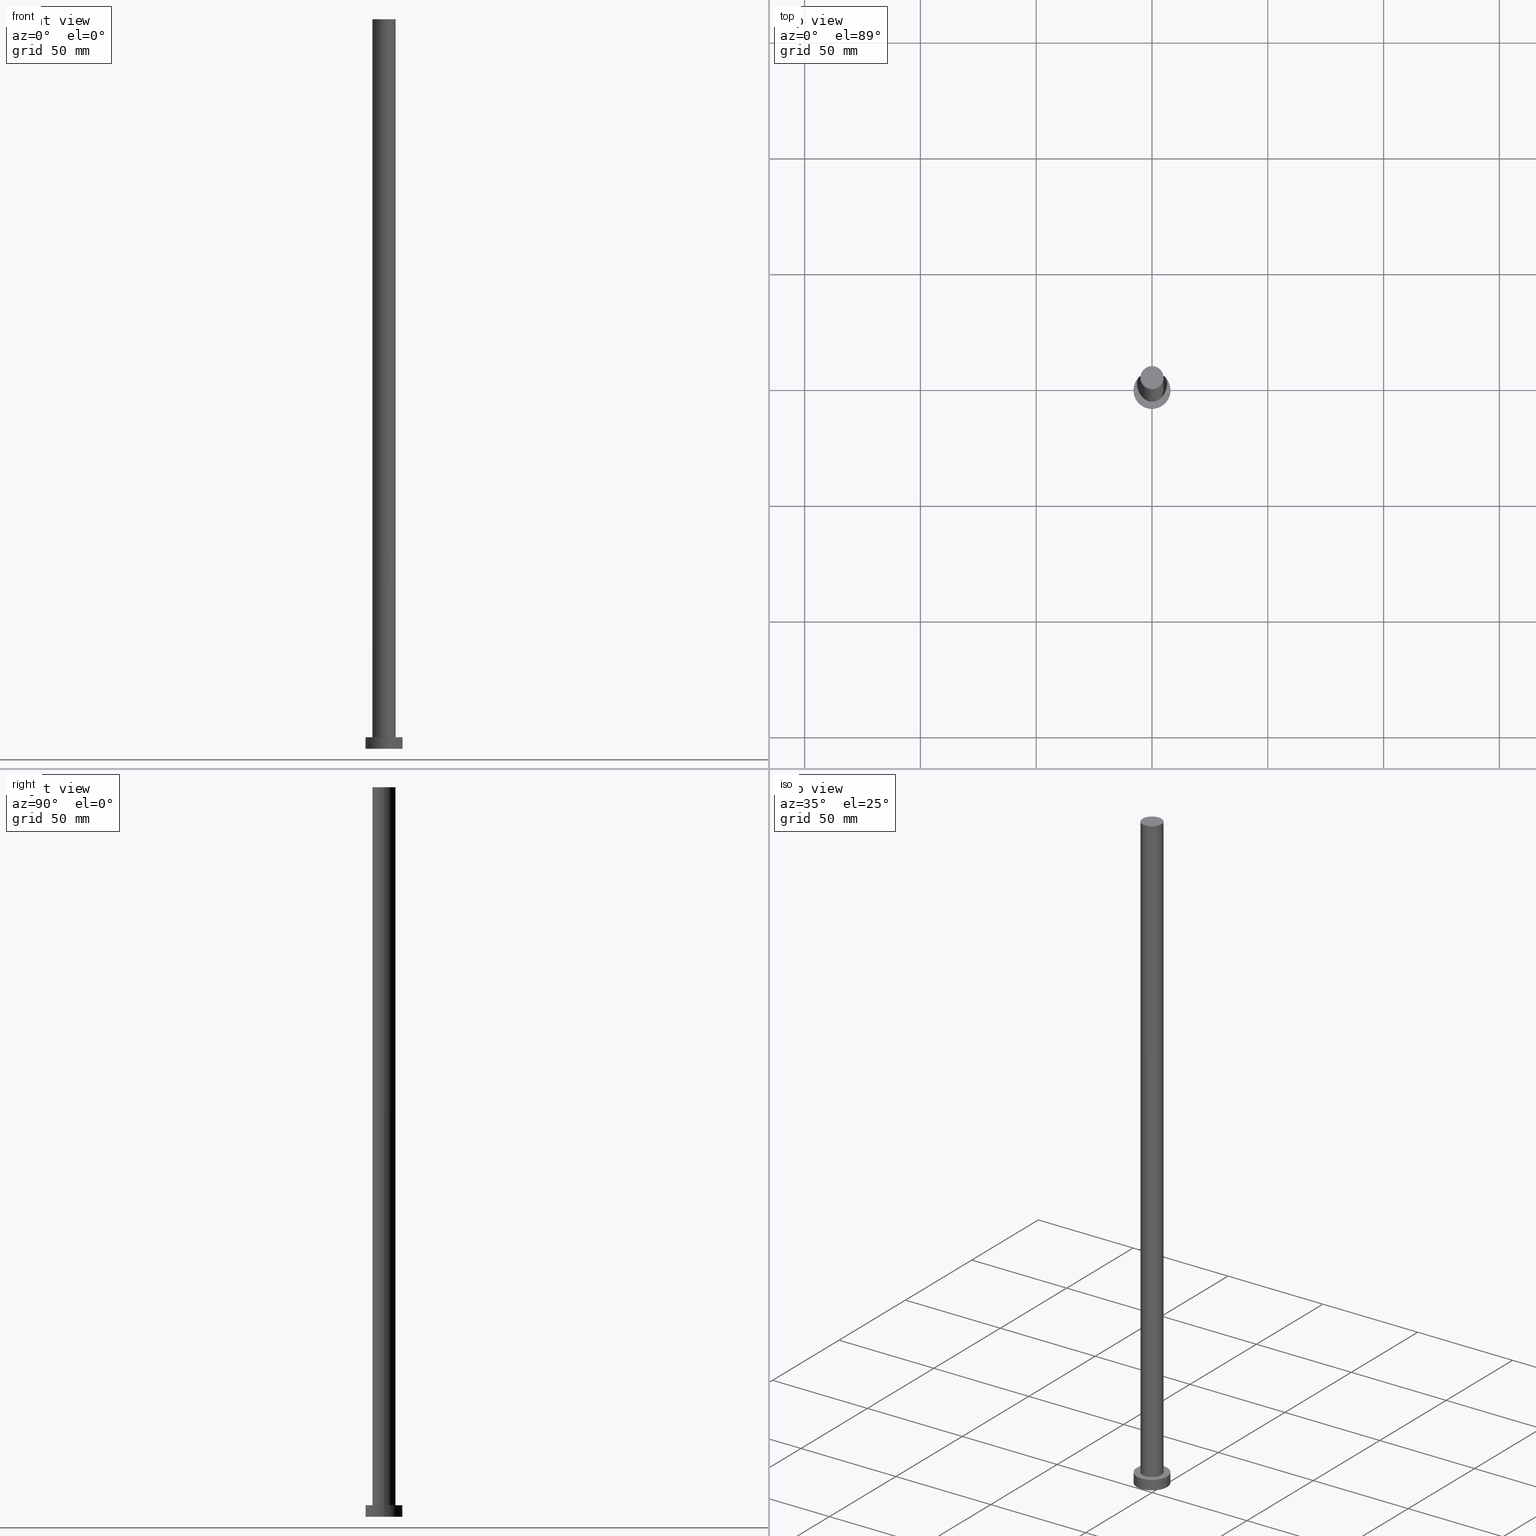
[diagram: canonical four-view strip — front | top / right | iso, engineering-drawing reading convention]
A machine part, canonical four-view strip (front | top / right | iso — engineering-drawing reading convention). The complete STEP part file that produces these views, byte-faithful:
ISO-10303-21;
HEADER;
FILE_DESCRIPTION (( 'STEP AP203' ),
    '1' );
FILE_NAME ('c15c.STEP',
    '2023-02-13T13:49:29',
    ( '' ),
    ( '' ),
    'SwSTEP 2.0',
    'SolidWorks 2019',
    '' );
FILE_SCHEMA (( 'CONFIG_CONTROL_DESIGN' ));
ENDSEC;

DATA;
#1 = APPROVAL_ROLE ( '' ) ;
#2 = EDGE_LOOP ( 'NONE', ( #175, #210 ) ) ;
#3 = CARTESIAN_POINT ( 'NONE',  ( 8.000000000000000000, 9.797174393178825657E-16, 5.000000000000000000 ) ) ;
#4 = VECTOR ( 'NONE', #229, 1000.000000000000000 ) ;
#5 = CC_DESIGN_DATE_AND_TIME_ASSIGNMENT ( #83, #182, ( #224 ) ) ;
#6 = ORIENTED_EDGE ( 'NONE', *, *, #124, .F. ) ;
#7 = AXIS2_PLACEMENT_3D ( 'NONE', #242, #132, #11 ) ;
#8 = CC_DESIGN_PERSON_AND_ORGANIZATION_ASSIGNMENT ( #30, #248, ( #152 ) ) ;
#9 = ADVANCED_FACE ( 'NONE', ( #55 ), #76, .F. ) ;
#10 = AXIS2_PLACEMENT_3D ( 'NONE', #250, #139, #84 ) ;
#11 = DIRECTION ( 'NONE',  ( 1.000000000000000000, 0.000000000000000000, 0.000000000000000000 ) ) ;
#12 = ORIENTED_EDGE ( 'NONE', *, *, #136, .F. ) ;
#13 = APPROVAL ( #164, 'NEUR�EN�' ) ;
#14 = EDGE_CURVE ( 'NONE', #217, #87, #95, .T. ) ;
#15 = CARTESIAN_POINT ( 'NONE',  ( 0.000000000000000000, 0.000000000000000000, 5.000000000000000000 ) ) ;
#16 = DIRECTION ( 'NONE',  ( 1.000000000000000000, 0.000000000000000000, -0.000000000000000000 ) ) ;
#17 = DATE_TIME_ROLE ( 'creation_date' ) ;
#18 = DIRECTION ( 'NONE',  ( 0.000000000000000000, 0.000000000000000000, 1.000000000000000000 ) ) ;
#19 = LINE ( 'NONE', #3, #171 ) ;
#20 = ORIENTED_EDGE ( 'NONE', *, *, #109, .T. ) ;
#21 = LOCAL_TIME ( 14, 49, 29.00000000000000000, #188 ) ;
#22 = CIRCLE ( 'NONE', #89, 8.000000000000000000 ) ;
#23 = APPROVAL_PERSON_ORGANIZATION ( #24, #130, #160 ) ;
#24 = PERSON_AND_ORGANIZATION ( #54, #245 ) ;
#25 = VERTEX_POINT ( 'NONE', #31 ) ;
#26 = CARTESIAN_POINT ( 'NONE',  ( 0.000000000000000000, 0.000000000000000000, 5.000000000000000000 ) ) ;
#27 = APPROVAL_DATE_TIME ( #252, #85 ) ;
#28 = EDGE_CURVE ( 'NONE', #187, #115, #42, .T. ) ;
#29 = UNCERTAINTY_MEASURE_WITH_UNIT (LENGTH_MEASURE( 1.000000000000000082E-05 ), #40, 'distance_accuracy_value', 'NONE');
#30 = PERSON_AND_ORGANIZATION ( #54, #245 ) ;
#31 = CARTESIAN_POINT ( 'NONE',  ( 8.000000000000000000, 9.797174393178825657E-16, 5.000000000000000000 ) ) ;
#32 = CC_DESIGN_PERSON_AND_ORGANIZATION_ASSIGNMENT ( #243, #199, ( #52 ) ) ;
#33 = LINE ( 'NONE', #225, #120 ) ;
#34 = ORIENTED_EDGE ( 'NONE', *, *, #136, .T. ) ;
#35 = DIRECTION ( 'NONE',  ( 0.000000000000000000, 0.000000000000000000, 1.000000000000000000 ) ) ;
#36 = DIRECTION ( 'NONE',  ( 0.000000000000000000, 0.000000000000000000, 1.000000000000000000 ) ) ;
#37 = CIRCLE ( 'NONE', #41, 5.000000000000000000 ) ;
#38 = VECTOR ( 'NONE', #186, 1000.000000000000000 ) ;
#39 = CARTESIAN_POINT ( 'NONE',  ( 0.000000000000000000, 0.000000000000000000, 5.000000000000000000 ) ) ;
#40 =( LENGTH_UNIT ( ) NAMED_UNIT ( * ) SI_UNIT ( .MILLI., .METRE. ) );
#41 = AXIS2_PLACEMENT_3D ( 'NONE', #79, #35, #228 ) ;
#42 = LINE ( 'NONE', #61, #4 ) ;
#43 = CARTESIAN_POINT ( 'NONE',  ( 5.000000000000000000, 6.123233995736766282E-16, 5.000000000000000000 ) ) ;
#44 = PERSON_AND_ORGANIZATION ( #54, #245 ) ;
#45 = ORIENTED_EDGE ( 'NONE', *, *, #28, .T. ) ;
#46 = ORIENTED_EDGE ( 'NONE', *, *, #109, .F. ) ;
#47 = CARTESIAN_POINT ( 'NONE',  ( -5.000000000000000000, 0.000000000000000000, 315.0000000000000000 ) ) ;
#48 = APPROVAL_PERSON_ORGANIZATION ( #86, #13, #255 ) ;
#49 = ORIENTED_EDGE ( 'NONE', *, *, #53, .F. ) ;
#50 = CC_DESIGN_DATE_AND_TIME_ASSIGNMENT ( #213, #17, ( #161 ) ) ;
#51 = EDGE_LOOP ( 'NONE', ( #198, #6, #34, #88 ) ) ;
#52 = PRODUCT ( 'c15c', 'c15c', '', ( #71 ) ) ;
#53 = EDGE_CURVE ( 'NONE', #187, #125, #194, .T. ) ;
#54 = PERSON ( 'NEUR�EN�', 'NEUR�EN�', 'NEUR�EN�', ('NEUR�EN�'), ('NEUR�EN�'), ('NEUR�EN�') ) ;
#55 = FACE_OUTER_BOUND ( 'NONE', #146, .T. ) ;
#56 = PRODUCT_DEFINITION_SHAPE ( 'NONE', 'NONE',  #161 ) ;
#57 = CARTESIAN_POINT ( 'NONE',  ( 0.000000000000000000, 0.000000000000000000, 5.000000000000000000 ) ) ;
#58 = PERSON_AND_ORGANIZATION_ROLE ( 'creator' ) ;
#59 = ORIENTED_EDGE ( 'NONE', *, *, #216, .F. ) ;
#60 = CIRCLE ( 'NONE', #237, 8.000000000000000000 ) ;
#61 = CARTESIAN_POINT ( 'NONE',  ( 5.000000000000000000, 6.123233995736766282E-16, 315.0000000000000000 ) ) ;
#62 = CARTESIAN_POINT ( 'NONE',  ( 0.000000000000000000, 0.000000000000000000, 315.0000000000000000 ) ) ;
#63 = SECURITY_CLASSIFICATION_LEVEL ( 'unclassified' ) ;
#64 = FACE_OUTER_BOUND ( 'NONE', #106, .T. ) ;
#65 = MANIFOLD_SOLID_BREP ( 'P�idat vysunut�m3', #153 ) ;
#66 = EDGE_LOOP ( 'NONE', ( #59, #46, #234, #147 ) ) ;
#67 = DIRECTION ( 'NONE',  ( -0.000000000000000000, -0.000000000000000000, -1.000000000000000000 ) ) ;
#68 = AXIS2_PLACEMENT_3D ( 'NONE', #183, #249, #16 ) ;
#69 =( NAMED_UNIT ( * ) PLANE_ANGLE_UNIT ( ) SI_UNIT ( $, .RADIAN. ) );
#70 = ORIENTED_EDGE ( 'NONE', *, *, #216, .T. ) ;
#71 = MECHANICAL_CONTEXT ( 'NONE', #209, 'mechanical' ) ;
#72 = LOCAL_TIME ( 14, 49, 29.00000000000000000, #178 ) ;
#73 = AXIS2_PLACEMENT_3D ( 'NONE', #103, #134, #141 ) ;
#74 = FACE_OUTER_BOUND ( 'NONE', #51, .T. ) ;
#75 = CALENDAR_DATE ( 2023, 13, 2 ) ;
#76 = PLANE ( 'NONE',  #68 ) ;
#77 = EDGE_CURVE ( 'NONE', #232, #217, #33, .T. ) ;
#78 = CC_DESIGN_SECURITY_CLASSIFICATION ( #224, ( #152 ) ) ;
#79 = CARTESIAN_POINT ( 'NONE',  ( 0.000000000000000000, 0.000000000000000000, 5.000000000000000000 ) ) ;
#80 = COORDINATED_UNIVERSAL_TIME_OFFSET ( 1, 0, .AHEAD. ) ;
#81 = AXIS2_PLACEMENT_3D ( 'NONE', #15, #223, #230 ) ;
#82 = CARTESIAN_POINT ( 'NONE',  ( 0.000000000000000000, 0.000000000000000000, 315.0000000000000000 ) ) ;
#83 = DATE_AND_TIME ( #117, #191 ) ;
#84 = DIRECTION ( 'NONE',  ( 1.000000000000000000, 0.000000000000000000, -0.000000000000000000 ) ) ;
#85 = APPROVAL ( #162, 'NEUR�EN�' ) ;
#86 = PERSON_AND_ORGANIZATION ( #54, #245 ) ;
#87 = VERTEX_POINT ( 'NONE', #202 ) ;
#88 = ORIENTED_EDGE ( 'NONE', *, *, #190, .T. ) ;
#89 = AXIS2_PLACEMENT_3D ( 'NONE', #97, #100, #247 ) ;
#90 = EDGE_CURVE ( 'NONE', #87, #217, #22, .T. ) ;
#91 = CARTESIAN_POINT ( 'NONE',  ( -8.000000000000000000, 0.000000000000000000, 5.000000000000000000 ) ) ;
#92 = LOCAL_TIME ( 14, 49, 29.00000000000000000, #80 ) ;
#93 = CC_DESIGN_APPROVAL ( #130, ( #161 ) ) ;
#94 = COORDINATED_UNIVERSAL_TIME_OFFSET ( 1, 0, .AHEAD. ) ;
#95 = CIRCLE ( 'NONE', #244, 8.000000000000000000 ) ;
#96 = CYLINDRICAL_SURFACE ( 'NONE', #154, 5.000000000000000000 ) ;
#97 = CARTESIAN_POINT ( 'NONE',  ( 0.000000000000000000, 0.000000000000000000, 0.000000000000000000 ) ) ;
#98 = COORDINATED_UNIVERSAL_TIME_OFFSET ( 1, 0, .AHEAD. ) ;
#99 = DIRECTION ( 'NONE',  ( 0.000000000000000000, 0.000000000000000000, 1.000000000000000000 ) ) ;
#100 = DIRECTION ( 'NONE',  ( 0.000000000000000000, 0.000000000000000000, 1.000000000000000000 ) ) ;
#101 = FACE_OUTER_BOUND ( 'NONE', #167, .T. ) ;
#102 =( GEOMETRIC_REPRESENTATION_CONTEXT ( 3 ) GLOBAL_UNCERTAINTY_ASSIGNED_CONTEXT ( ( #29 ) ) GLOBAL_UNIT_ASSIGNED_CONTEXT ( ( #40, #69, #149 ) ) REPRESENTATION_CONTEXT ( 'NONE', 'WORKASPACE' ) );
#103 = CARTESIAN_POINT ( 'NONE',  ( 0.000000000000000000, 0.000000000000000000, 315.0000000000000000 ) ) ;
#104 = CARTESIAN_POINT ( 'NONE',  ( 5.000000000000000000, 6.123233995736766282E-16, 315.0000000000000000 ) ) ;
#105 = VERTEX_POINT ( 'NONE', #163 ) ;
#106 = EDGE_LOOP ( 'NONE', ( #20, #157 ) ) ;
#107 = AXIS2_PLACEMENT_3D ( 'NONE', #251, #18, #254 ) ;
#108 = DIRECTION ( 'NONE',  ( 0.000000000000000000, 0.000000000000000000, 1.000000000000000000 ) ) ;
#109 = EDGE_CURVE ( 'NONE', #232, #25, #226, .T. ) ;
#110 = ADVANCED_FACE ( 'NONE', ( #101 ), #142, .T. ) ;
#111 = ORIENTED_EDGE ( 'NONE', *, *, #127, .T. ) ;
#112 = AXIS2_PLACEMENT_3D ( 'NONE', #39, #67, #189 ) ;
#113 = SHAPE_DEFINITION_REPRESENTATION ( #56, #169 ) ;
#114 = DIRECTION ( 'NONE',  ( -0.000000000000000000, -0.000000000000000000, -1.000000000000000000 ) ) ;
#115 = VERTEX_POINT ( 'NONE', #43 ) ;
#116 = DATE_AND_TIME ( #180, #218 ) ;
#117 = CALENDAR_DATE ( 2023, 13, 2 ) ;
#118 = EDGE_LOOP ( 'NONE', ( #222, #70, #208, #151 ) ) ;
#119 = CARTESIAN_POINT ( 'NONE',  ( -5.000000000000000000, 0.000000000000000000, 315.0000000000000000 ) ) ;
#120 = VECTOR ( 'NONE', #114, 1000.000000000000000 ) ;
#121 = DIRECTION ( 'NONE',  ( -0.000000000000000000, -0.000000000000000000, -1.000000000000000000 ) ) ;
#122 = AXIS2_PLACEMENT_3D ( 'NONE', #26, #121, #135 ) ;
#123 = CALENDAR_DATE ( 2023, 13, 2 ) ;
#124 = EDGE_CURVE ( 'NONE', #125, #187, #197, .T. ) ;
#125 = VERTEX_POINT ( 'NONE', #119 ) ;
#126 = AXIS2_PLACEMENT_3D ( 'NONE', #62, #99, #155 ) ;
#127 = EDGE_CURVE ( 'NONE', #115, #105, #138, .T. ) ;
#128 = FACE_OUTER_BOUND ( 'NONE', #66, .T. ) ;
#129 = FACE_OUTER_BOUND ( 'NONE', #159, .T. ) ;
#130 = APPROVAL ( #184, 'NEUR�EN�' ) ;
#131 = APPLICATION_PROTOCOL_DEFINITION ( 'international standard', 'config_control_design', 1994, #209 ) ;
#132 = DIRECTION ( 'NONE',  ( 0.000000000000000000, 0.000000000000000000, 1.000000000000000000 ) ) ;
#133 = APPLICATION_PROTOCOL_DEFINITION ( 'international standard', 'config_control_design', 1994, #219 ) ;
#134 = DIRECTION ( 'NONE',  ( 0.000000000000000000, 0.000000000000000000, 1.000000000000000000 ) ) ;
#135 = DIRECTION ( 'NONE',  ( -1.000000000000000000, 0.000000000000000000, 0.000000000000000000 ) ) ;
#136 = EDGE_CURVE ( 'NONE', #125, #105, #144, .T. ) ;
#137 = ORIENTED_EDGE ( 'NONE', *, *, #53, .T. ) ;
#138 = CIRCLE ( 'NONE', #81, 5.000000000000000000 ) ;
#139 = DIRECTION ( 'NONE',  ( 0.000000000000000000, 0.000000000000000000, 1.000000000000000000 ) ) ;
#140 = CC_DESIGN_PERSON_AND_ORGANIZATION_ASSIGNMENT ( #44, #203, ( #152 ) ) ;
#141 = DIRECTION ( 'NONE',  ( 1.000000000000000000, 0.000000000000000000, 0.000000000000000000 ) ) ;
#142 = PLANE ( 'NONE',  #10 ) ;
#143 = PERSON_AND_ORGANIZATION_ROLE ( 'classification_officer' ) ;
#144 = LINE ( 'NONE', #47, #38 ) ;
#145 = PERSON_AND_ORGANIZATION ( #54, #245 ) ;
#146 = EDGE_LOOP ( 'NONE', ( #148, #179 ) ) ;
#147 = ORIENTED_EDGE ( 'NONE', *, *, #14, .T. ) ;
#148 = ORIENTED_EDGE ( 'NONE', *, *, #14, .F. ) ;
#149 =( NAMED_UNIT ( * ) SI_UNIT ( $, .STERADIAN. ) SOLID_ANGLE_UNIT ( ) );
#150 = CYLINDRICAL_SURFACE ( 'NONE', #112, 8.000000000000000000 ) ;
#151 = ORIENTED_EDGE ( 'NONE', *, *, #77, .F. ) ;
#152 = PRODUCT_DEFINITION_FORMATION_WITH_SPECIFIED_SOURCE ( 'LIBOVOLN�', '', #52, .NOT_KNOWN. ) ;
#153 = CLOSED_SHELL ( 'NONE', ( #246, #192, #235, #241, #9, #215, #110 ) ) ;
#154 = AXIS2_PLACEMENT_3D ( 'NONE', #82, #158, #168 ) ;
#155 = DIRECTION ( 'NONE',  ( 1.000000000000000000, 0.000000000000000000, 0.000000000000000000 ) ) ;
#156 = CALENDAR_DATE ( 2023, 13, 2 ) ;
#157 = ORIENTED_EDGE ( 'NONE', *, *, #176, .T. ) ;
#158 = DIRECTION ( 'NONE',  ( -0.000000000000000000, -0.000000000000000000, -1.000000000000000000 ) ) ;
#159 = EDGE_LOOP ( 'NONE', ( #49, #45, #111, #12 ) ) ;
#160 = APPROVAL_ROLE ( '' ) ;
#161 = PRODUCT_DEFINITION ( 'NEZN�M�', '', #152, #181 ) ;
#162 = APPROVAL_STATUS ( 'not_yet_approved' ) ;
#163 = CARTESIAN_POINT ( 'NONE',  ( -5.000000000000000000, 0.000000000000000000, 5.000000000000000000 ) ) ;
#164 = APPROVAL_STATUS ( 'not_yet_approved' ) ;
#165 = DIRECTION ( 'NONE',  ( 0.000000000000000000, 0.000000000000000000, 1.000000000000000000 ) ) ;
#166 = DATE_AND_TIME ( #123, #92 ) ;
#167 = EDGE_LOOP ( 'NONE', ( #227, #137 ) ) ;
#168 = DIRECTION ( 'NONE',  ( -1.000000000000000000, 0.000000000000000000, 0.000000000000000000 ) ) ;
#169 = ADVANCED_BREP_SHAPE_REPRESENTATION ( 'c15c', ( #65, #7 ), #102 ) ;
#170 = CC_DESIGN_PERSON_AND_ORGANIZATION_ASSIGNMENT ( #201, #58, ( #161 ) ) ;
#171 = VECTOR ( 'NONE', #172, 1000.000000000000000 ) ;
#172 = DIRECTION ( 'NONE',  ( -0.000000000000000000, -0.000000000000000000, -1.000000000000000000 ) ) ;
#173 = CYLINDRICAL_SURFACE ( 'NONE', #211, 5.000000000000000000 ) ;
#174 = FACE_BOUND ( 'NONE', #2, .T. ) ;
#175 = ORIENTED_EDGE ( 'NONE', *, *, #190, .F. ) ;
#176 = EDGE_CURVE ( 'NONE', #25, #232, #60, .T. ) ;
#177 = DIRECTION ( 'NONE',  ( -1.000000000000000000, 0.000000000000000000, 0.000000000000000000 ) ) ;
#178 = COORDINATED_UNIVERSAL_TIME_OFFSET ( 1, 0, .AHEAD. ) ;
#179 = ORIENTED_EDGE ( 'NONE', *, *, #90, .F. ) ;
#180 = CALENDAR_DATE ( 2023, 13, 2 ) ;
#181 = DESIGN_CONTEXT ( 'detailed design', #219, 'design' ) ;
#182 = DATE_TIME_ROLE ( 'classification_date' ) ;
#183 = CARTESIAN_POINT ( 'NONE',  ( 0.000000000000000000, 0.000000000000000000, 0.000000000000000000 ) ) ;
#184 = APPROVAL_STATUS ( 'not_yet_approved' ) ;
#185 = APPROVAL_PERSON_ORGANIZATION ( #145, #85, #1 ) ;
#186 = DIRECTION ( 'NONE',  ( -0.000000000000000000, -0.000000000000000000, -1.000000000000000000 ) ) ;
#187 = VERTEX_POINT ( 'NONE', #104 ) ;
#188 = COORDINATED_UNIVERSAL_TIME_OFFSET ( 1, 0, .AHEAD. ) ;
#189 = DIRECTION ( 'NONE',  ( -1.000000000000000000, 0.000000000000000000, 0.000000000000000000 ) ) ;
#190 = EDGE_CURVE ( 'NONE', #105, #115, #37, .T. ) ;
#191 = LOCAL_TIME ( 14, 49, 29.00000000000000000, #98 ) ;
#192 = ADVANCED_FACE ( 'NONE', ( #200 ), #206, .T. ) ;
#193 = CC_DESIGN_APPROVAL ( #13, ( #224 ) ) ;
#194 = CIRCLE ( 'NONE', #73, 5.000000000000000000 ) ;
#195 = DIRECTION ( 'NONE',  ( 1.000000000000000000, 0.000000000000000000, -0.000000000000000000 ) ) ;
#196 = CARTESIAN_POINT ( 'NONE',  ( -8.000000000000000000, 0.000000000000000000, 0.000000000000000000 ) ) ;
#197 = CIRCLE ( 'NONE', #126, 5.000000000000000000 ) ;
#198 = ORIENTED_EDGE ( 'NONE', *, *, #28, .F. ) ;
#199 = PERSON_AND_ORGANIZATION_ROLE ( 'design_owner' ) ;
#200 = FACE_OUTER_BOUND ( 'NONE', #118, .T. ) ;
#201 = PERSON_AND_ORGANIZATION ( #54, #245 ) ;
#202 = CARTESIAN_POINT ( 'NONE',  ( 8.000000000000000000, 9.797174393178825657E-16, 0.000000000000000000 ) ) ;
#203 = PERSON_AND_ORGANIZATION_ROLE ( 'creator' ) ;
#204 = CARTESIAN_POINT ( 'NONE',  ( 0.000000000000000000, 0.000000000000000000, 0.000000000000000000 ) ) ;
#205 = APPROVAL_DATE_TIME ( #116, #130 ) ;
#206 = CYLINDRICAL_SURFACE ( 'NONE', #122, 8.000000000000000000 ) ;
#207 = PERSON_AND_ORGANIZATION ( #54, #245 ) ;
#208 = ORIENTED_EDGE ( 'NONE', *, *, #90, .T. ) ;
#209 = APPLICATION_CONTEXT ( 'configuration controlled 3d designs of mechanical parts and assemblies' ) ;
#210 = ORIENTED_EDGE ( 'NONE', *, *, #127, .F. ) ;
#211 = AXIS2_PLACEMENT_3D ( 'NONE', #239, #220, #177 ) ;
#212 = CC_DESIGN_PERSON_AND_ORGANIZATION_ASSIGNMENT ( #207, #143, ( #224 ) ) ;
#213 = DATE_AND_TIME ( #156, #21 ) ;
#214 = CARTESIAN_POINT ( 'NONE',  ( 0.000000000000000000, 0.000000000000000000, 5.000000000000000000 ) ) ;
#215 = ADVANCED_FACE ( 'NONE', ( #74 ), #96, .T. ) ;
#216 = EDGE_CURVE ( 'NONE', #25, #87, #19, .T. ) ;
#217 = VERTEX_POINT ( 'NONE', #196 ) ;
#218 = LOCAL_TIME ( 14, 49, 29.00000000000000000, #94 ) ;
#219 = APPLICATION_CONTEXT ( 'configuration controlled 3d designs of mechanical parts and assemblies' ) ;
#220 = DIRECTION ( 'NONE',  ( -0.000000000000000000, -0.000000000000000000, -1.000000000000000000 ) ) ;
#221 = PRODUCT_RELATED_PRODUCT_CATEGORY ( 'detail', '', ( #52 ) ) ;
#222 = ORIENTED_EDGE ( 'NONE', *, *, #176, .F. ) ;
#223 = DIRECTION ( 'NONE',  ( 0.000000000000000000, 0.000000000000000000, 1.000000000000000000 ) ) ;
#224 = SECURITY_CLASSIFICATION ( '', '', #63 ) ;
#225 = CARTESIAN_POINT ( 'NONE',  ( -8.000000000000000000, 0.000000000000000000, 5.000000000000000000 ) ) ;
#226 = CIRCLE ( 'NONE', #107, 8.000000000000000000 ) ;
#227 = ORIENTED_EDGE ( 'NONE', *, *, #124, .T. ) ;
#228 = DIRECTION ( 'NONE',  ( 1.000000000000000000, 0.000000000000000000, 0.000000000000000000 ) ) ;
#229 = DIRECTION ( 'NONE',  ( -0.000000000000000000, -0.000000000000000000, -1.000000000000000000 ) ) ;
#230 = DIRECTION ( 'NONE',  ( 1.000000000000000000, 0.000000000000000000, 0.000000000000000000 ) ) ;
#231 = APPROVAL_DATE_TIME ( #166, #13 ) ;
#232 = VERTEX_POINT ( 'NONE', #91 ) ;
#233 = DIRECTION ( 'NONE',  ( 1.000000000000000000, 0.000000000000000000, 0.000000000000000000 ) ) ;
#234 = ORIENTED_EDGE ( 'NONE', *, *, #77, .T. ) ;
#235 = ADVANCED_FACE ( 'NONE', ( #128 ), #150, .T. ) ;
#236 = CC_DESIGN_APPROVAL ( #85, ( #152 ) ) ;
#237 = AXIS2_PLACEMENT_3D ( 'NONE', #57, #165, #233 ) ;
#238 = AXIS2_PLACEMENT_3D ( 'NONE', #214, #108, #195 ) ;
#239 = CARTESIAN_POINT ( 'NONE',  ( 0.000000000000000000, 0.000000000000000000, 315.0000000000000000 ) ) ;
#240 = PLANE ( 'NONE',  #238 ) ;
#241 = ADVANCED_FACE ( 'NONE', ( #174, #64 ), #240, .T. ) ;
#242 = CARTESIAN_POINT ( 'NONE',  ( 0.000000000000000000, 0.000000000000000000, 0.000000000000000000 ) ) ;
#243 = PERSON_AND_ORGANIZATION ( #54, #245 ) ;
#244 = AXIS2_PLACEMENT_3D ( 'NONE', #204, #36, #253 ) ;
#245 = ORGANIZATION ( 'NEUR�EN�', 'NEUR�EN�', '' ) ;
#246 = ADVANCED_FACE ( 'NONE', ( #129 ), #173, .T. ) ;
#247 = DIRECTION ( 'NONE',  ( 1.000000000000000000, 0.000000000000000000, 0.000000000000000000 ) ) ;
#248 = PERSON_AND_ORGANIZATION_ROLE ( 'design_supplier' ) ;
#249 = DIRECTION ( 'NONE',  ( 0.000000000000000000, 0.000000000000000000, 1.000000000000000000 ) ) ;
#250 = CARTESIAN_POINT ( 'NONE',  ( 0.000000000000000000, 0.000000000000000000, 315.0000000000000000 ) ) ;
#251 = CARTESIAN_POINT ( 'NONE',  ( 0.000000000000000000, 0.000000000000000000, 5.000000000000000000 ) ) ;
#252 = DATE_AND_TIME ( #75, #72 ) ;
#253 = DIRECTION ( 'NONE',  ( 1.000000000000000000, 0.000000000000000000, 0.000000000000000000 ) ) ;
#254 = DIRECTION ( 'NONE',  ( 1.000000000000000000, 0.000000000000000000, 0.000000000000000000 ) ) ;
#255 = APPROVAL_ROLE ( '' ) ;
ENDSEC;
END-ISO-10303-21;
